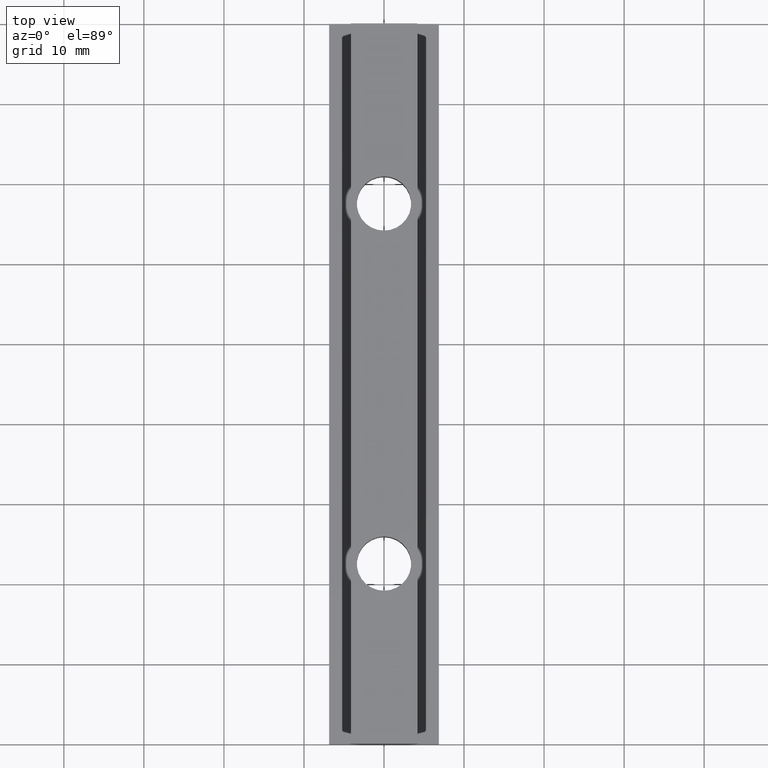
[diagram: clean part render]
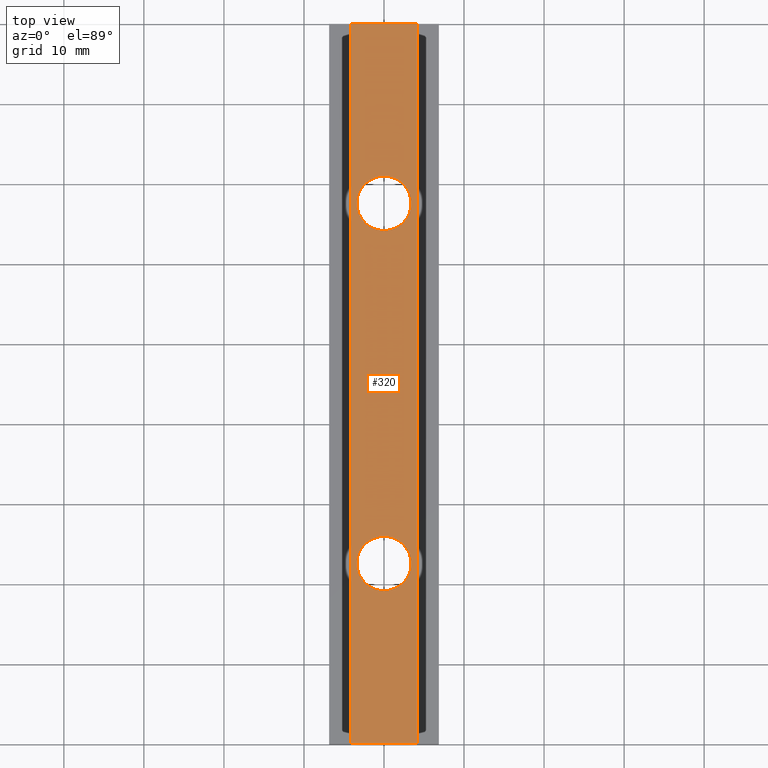
[diagram: same view with one face highlighted and labeled with its STEP entity id]
A machine part, top view. The second image highlights one B-rep face of the part: STEP entity #320.
In plain terms, the highlighted planar face has unit normal (0, 0, 1).
Its self-contained STEP definition (entity closure, byte-faithful):
#7=CARTESIAN_POINT('',(0.0,25.899999999999999,7.999999999999989));
#8=VERTEX_POINT('',#7);
#9=CARTESIAN_POINT('',(0.0,19.100000000000001,7.999999999999989));
#10=VERTEX_POINT('',#9);
#11=CARTESIAN_POINT('',(0.0,22.500000000000000,7.999999999999989));
#12=DIRECTION('',(0.0,6.123234E-017,1.0));
#13=DIRECTION('',(0.0,-1.0,6.123234E-017));
#14=AXIS2_PLACEMENT_3D('',#11,#12,#13);
#15=CIRCLE('',#14,3.400000000000001);
#16=EDGE_CURVE('',#8,#10,#15,.T.);
#49=CARTESIAN_POINT('',(0.0,70.900000000000006,7.999999999999986));
#50=VERTEX_POINT('',#49);
#51=CARTESIAN_POINT('',(0.0,64.100000000000023,7.999999999999986));
#52=VERTEX_POINT('',#51);
#53=CARTESIAN_POINT('',(0.0,67.500000000000000,7.999999999999986));
#54=DIRECTION('',(0.0,6.123234E-017,1.0));
#55=DIRECTION('',(0.0,-1.0,6.123234E-017));
#56=AXIS2_PLACEMENT_3D('',#53,#54,#55);
#57=CIRCLE('',#56,3.400000000000001);
#58=EDGE_CURVE('',#50,#52,#57,.T.);
#244=CARTESIAN_POINT('',(4.149999999999999,1.776357E-015,8.0));
#245=VERTEX_POINT('',#244);
#253=CARTESIAN_POINT('',(4.149999999999999,90.0,7.999999999999993));
#254=VERTEX_POINT('',#253);
#261=CARTESIAN_POINT('',(4.149999999999999,90.0,7.999999999999993));
#262=DIRECTION('',(0.0,-1.0,0.0));
#263=VECTOR('',#262,90.0);
#264=LINE('',#261,#263);
#265=EDGE_CURVE('',#254,#245,#264,.T.);
#270=CARTESIAN_POINT('',(-4.564999999999998,94.500000000000000,7.999999999999993));
#271=DIRECTION('',(0.0,0.0,1.0));
#272=DIRECTION('',(0.0,-1.0,0.0));
#273=AXIS2_PLACEMENT_3D('',#270,#271,#272);
#274=PLANE('',#273);
#275=CARTESIAN_POINT('',(-4.149999999999999,1.776357E-015,8.0));
#276=VERTEX_POINT('',#275);
#277=CARTESIAN_POINT('',(4.149999999999999,1.776357E-015,8.0));
#278=DIRECTION('',(-1.0,0.0,0.0));
#279=VECTOR('',#278,8.299999999999997);
#280=LINE('',#277,#279);
#281=EDGE_CURVE('',#245,#276,#280,.T.);
#282=ORIENTED_EDGE('',*,*,#281,.F.);
#283=ORIENTED_EDGE('',*,*,#265,.F.);
#284=CARTESIAN_POINT('',(-4.149999999999999,90.0,7.999999999999993));
#285=VERTEX_POINT('',#284);
#286=CARTESIAN_POINT('',(4.149999999999999,90.0,7.999999999999993));
#287=DIRECTION('',(-1.0,0.0,0.0));
#288=VECTOR('',#287,8.299999999999997);
#289=LINE('',#286,#288);
#290=EDGE_CURVE('',#254,#285,#289,.T.);
#291=ORIENTED_EDGE('',*,*,#290,.T.);
#292=CARTESIAN_POINT('',(-4.149999999999999,90.0,7.999999999999993));
#293=DIRECTION('',(0.0,-1.0,0.0));
#294=VECTOR('',#293,90.0);
#295=LINE('',#292,#294);
#296=EDGE_CURVE('',#285,#276,#295,.T.);
#297=ORIENTED_EDGE('',*,*,#296,.T.);
#298=EDGE_LOOP('',(#282,#283,#291,#297));
#299=FACE_OUTER_BOUND('',#298,.T.);
#300=ORIENTED_EDGE('',*,*,#58,.F.);
#301=CARTESIAN_POINT('',(0.0,67.500000000000000,7.999999999999986));
#302=DIRECTION('',(0.0,6.123234E-017,1.0));
#303=DIRECTION('',(0.0,-1.0,6.123234E-017));
#304=AXIS2_PLACEMENT_3D('',#301,#302,#303);
#305=CIRCLE('',#304,3.400000000000001);
#306=EDGE_CURVE('',#52,#50,#305,.T.);
#307=ORIENTED_EDGE('',*,*,#306,.F.);
#308=EDGE_LOOP('',(#300,#307));
#309=FACE_BOUND('',#308,.T.);
#310=ORIENTED_EDGE('',*,*,#16,.F.);
#311=CARTESIAN_POINT('',(0.0,22.500000000000000,7.999999999999989));
#312=DIRECTION('',(0.0,6.123234E-017,1.0));
#313=DIRECTION('',(0.0,-1.0,6.123234E-017));
#314=AXIS2_PLACEMENT_3D('',#311,#312,#313);
#315=CIRCLE('',#314,3.400000000000001);
#316=EDGE_CURVE('',#10,#8,#315,.T.);
#317=ORIENTED_EDGE('',*,*,#316,.F.);
#318=EDGE_LOOP('',(#310,#317));
#319=FACE_BOUND('',#318,.T.);
#320=ADVANCED_FACE('',(#299,#309,#319),#274,.T.);